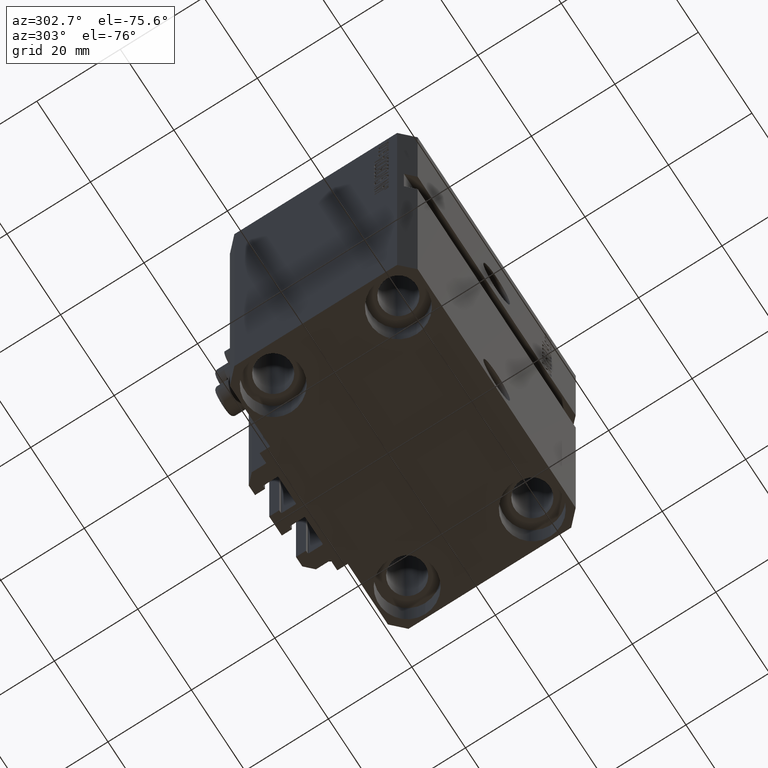
[diagram: clean part render]
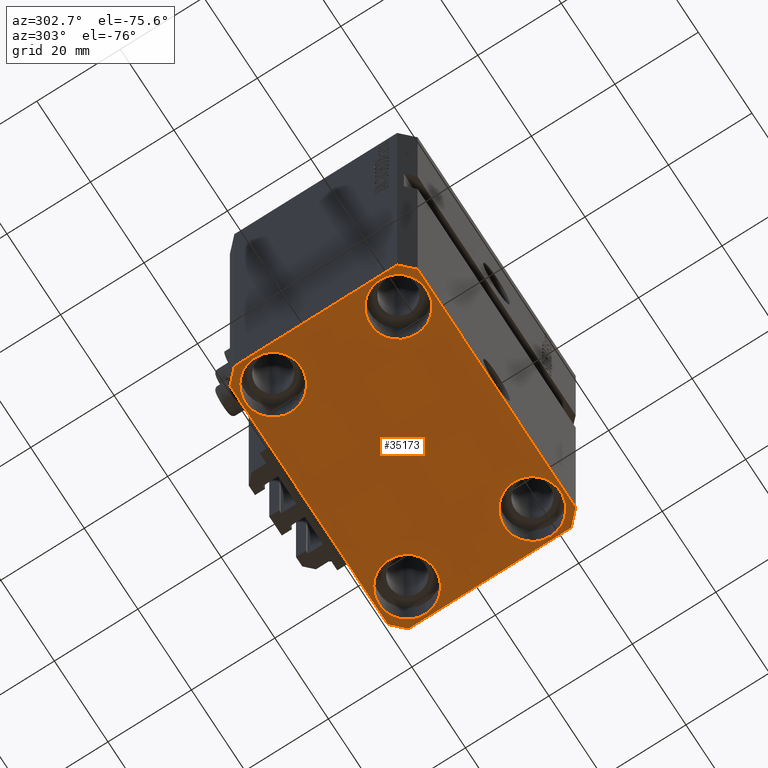
[diagram: same view with one face highlighted and labeled with its STEP entity id]
A machine part, auxiliary view. The second image highlights one B-rep face of the part: STEP entity #35173.
In plain terms, the highlighted planar face has unit normal (0, 0, 1).
Its self-contained STEP definition (entity closure, byte-faithful):
#14 = DIRECTION ( 'NONE',  ( -0.000000000000000000, -0.000000000000000000, 1.000000000000000000 ) ) ;
#82 = LINE ( 'NONE', #46398, #16047 ) ;
#499 = ORIENTED_EDGE ( 'NONE', *, *, #8552, .T. ) ;
#868 = DIRECTION ( 'NONE',  ( -0.000000000000000000, -0.000000000000000000, 1.000000000000000000 ) ) ;
#1665 = AXIS2_PLACEMENT_3D ( 'NONE', #12085, #41429, #34275 ) ;
#1680 = AXIS2_PLACEMENT_3D ( 'NONE', #3821, #4299, #21999 ) ;
#1861 = DIRECTION ( 'NONE',  ( 1.000000000000000000, 0.000000000000000000, 0.000000000000000000 ) ) ;
#2579 = LINE ( 'NONE', #38140, #34262 ) ;
#2635 = CIRCLE ( 'NONE', #5714, 6.750000000041541881 ) ;
#2769 = FACE_BOUND ( 'NONE', #32985, .T. ) ;
#3035 = AXIS2_PLACEMENT_3D ( 'NONE', #36067, #14, #47031 ) ;
#3114 = AXIS2_PLACEMENT_3D ( 'NONE', #27175, #15488, #1861 ) ;
#3326 = EDGE_CURVE ( 'NONE', #25304, #16161, #42530, .T. ) ;
#3500 = LINE ( 'NONE', #36905, #21987 ) ;
#3594 = DIRECTION ( 'NONE',  ( -0.000000000000000000, -0.000000000000000000, 1.000000000000000000 ) ) ;
#3821 = CARTESIAN_POINT ( 'NONE',  ( -25.00000000000000355, 15.00000000000000000, -107.0000000000000000 ) ) ;
#3880 = AXIS2_PLACEMENT_3D ( 'NONE', #6731, #25367, #7205 ) ;
#4054 = CARTESIAN_POINT ( 'NONE',  ( -29.49999999999650413, -22.49999999999949907, -107.0000000000000000 ) ) ;
#4299 = DIRECTION ( 'NONE',  ( -0.000000000000000000, -0.000000000000000000, 1.000000000000000000 ) ) ;
#4706 = EDGE_CURVE ( 'NONE', #40825, #25304, #44118, .T. ) ;
#4755 = VERTEX_POINT ( 'NONE', #26251 ) ;
#4866 = VERTEX_POINT ( 'NONE', #20740 ) ;
#5577 = EDGE_CURVE ( 'NONE', #16161, #37039, #2579, .T. ) ;
#5624 = VERTEX_POINT ( 'NONE', #6393 ) ;
#5714 = AXIS2_PLACEMENT_3D ( 'NONE', #27627, #45981, #37862 ) ;
#5994 = VECTOR ( 'NONE', #30026, 1000.000000000000114 ) ;
#6393 = CARTESIAN_POINT ( 'NONE',  ( -18.24999999997747224, 15.00000000000000000, -107.0000000000000000 ) ) ;
#6731 = CARTESIAN_POINT ( 'NONE',  ( 25.00000000000000355, -15.00000000000000000, -107.0000000000000000 ) ) ;
#6879 = VERTEX_POINT ( 'NONE', #13973 ) ;
#7205 = DIRECTION ( 'NONE',  ( 1.000000000000000000, 0.000000000000000000, 0.000000000000000000 ) ) ;
#7752 = CIRCLE ( 'NONE', #1665, 6.750000000022533087 ) ;
#7894 = DIRECTION ( 'NONE',  ( 1.000000000000000000, 0.000000000000000000, 0.000000000000000000 ) ) ;
#8267 = CARTESIAN_POINT ( 'NONE',  ( 29.49999999999650413, -22.49999999999949196, -107.0000000000000000 ) ) ;
#8552 = EDGE_CURVE ( 'NONE', #38506, #4755, #11500, .T. ) ;
#8662 = LINE ( 'NONE', #44448, #37923 ) ;
#9748 = EDGE_CURVE ( 'NONE', #40314, #5624, #7752, .T. ) ;
#9850 = CARTESIAN_POINT ( 'NONE',  ( 32.49999999999651124, -19.49999999999949196, -107.0000000000000000 ) ) ;
#9940 = DIRECTION ( 'NONE',  ( 1.000000000000000000, 0.000000000000000000, -0.000000000000000000 ) ) ;
#10940 = CARTESIAN_POINT ( 'NONE',  ( -29.49999999999650413, -22.49999999999949907, -107.0000000000000000 ) ) ;
#11500 = CIRCLE ( 'NONE', #3114, 6.749999999958452790 ) ;
#11671 = AXIS2_PLACEMENT_3D ( 'NONE', #33185, #3594, #7894 ) ;
#11912 = DIRECTION ( 'NONE',  ( 0.7071067811865483499, 0.7071067811865466846, 0.000000000000000000 ) ) ;
#12085 = CARTESIAN_POINT ( 'NONE',  ( -25.00000000000000355, 15.00000000000000000, -107.0000000000000000 ) ) ;
#12575 = ORIENTED_EDGE ( 'NONE', *, *, #9748, .T. ) ;
#13808 = CIRCLE ( 'NONE', #36657, 6.749999999977465137 ) ;
#13973 = CARTESIAN_POINT ( 'NONE',  ( -31.75000000004154899, -15.00000000000000000, -107.0000000000000000 ) ) ;
#14650 = DIRECTION ( 'NONE',  ( 0.000000000000000000, -1.000000000000000000, 0.000000000000000000 ) ) ;
#15279 = VERTEX_POINT ( 'NONE', #17494 ) ;
#15451 = ORIENTED_EDGE ( 'NONE', *, *, #40486, .T. ) ;
#15474 = CARTESIAN_POINT ( 'NONE',  ( -29.49999999999650413, 22.49999999999949907, -107.0000000000000000 ) ) ;
#15488 = DIRECTION ( 'NONE',  ( -0.000000000000000000, -0.000000000000000000, 1.000000000000000000 ) ) ;
#15682 = DIRECTION ( 'NONE',  ( 1.000000000000000000, 0.000000000000000000, 0.000000000000000000 ) ) ;
#16047 = VECTOR ( 'NONE', #14650, 1000.000000000000000 ) ;
#16161 = VERTEX_POINT ( 'NONE', #24966 ) ;
#16203 = CARTESIAN_POINT ( 'NONE',  ( -32.49999999999650413, -19.49999999999949907, -107.0000000000000000 ) ) ;
#16403 = ORIENTED_EDGE ( 'NONE', *, *, #45782, .T. ) ;
#16753 = ORIENTED_EDGE ( 'NONE', *, *, #24308, .F. ) ;
#17079 = CARTESIAN_POINT ( 'NONE',  ( 32.49999999999651124, -19.49999999999949196, -107.0000000000000000 ) ) ;
#17288 = EDGE_CURVE ( 'NONE', #4755, #38506, #46717, .T. ) ;
#17341 = DIRECTION ( 'NONE',  ( 0.000000000000000000, 0.000000000000000000, 1.000000000000000000 ) ) ;
#17362 = CARTESIAN_POINT ( 'NONE',  ( 18.25000000002253842, -15.00000000000000000, -107.0000000000000000 ) ) ;
#17494 = CARTESIAN_POINT ( 'NONE',  ( -18.24999999995845812, -15.00000000000000000, -107.0000000000000000 ) ) ;
#17503 = VECTOR ( 'NONE', #11912, 1000.000000000000000 ) ;
#20048 = ORIENTED_EDGE ( 'NONE', *, *, #5577, .F. ) ;
#20740 = CARTESIAN_POINT ( 'NONE',  ( -29.49999999999650413, 22.49999999999949907, -107.0000000000000000 ) ) ;
#20842 = CARTESIAN_POINT ( 'NONE',  ( 29.49999999999707967, 22.49999999999951328, -107.0000000000000000 ) ) ;
#20975 = DIRECTION ( 'NONE',  ( -0.7071067811865352493, 0.7071067811865597852, 0.000000000000000000 ) ) ;
#21140 = ORIENTED_EDGE ( 'NONE', *, *, #30895, .F. ) ;
#21590 = EDGE_CURVE ( 'NONE', #15279, #6879, #2635, .T. ) ;
#21773 = EDGE_LOOP ( 'NONE', ( #41432, #20048, #24918, #45144, #16753, #24123, #25323, #21140 ) ) ;
#21987 = VECTOR ( 'NONE', #28819, 1000.000000000000000 ) ;
#21999 = DIRECTION ( 'NONE',  ( 1.000000000000000000, 0.000000000000000000, 0.000000000000000000 ) ) ;
#22240 = CIRCLE ( 'NONE', #1680, 6.750000000022533087 ) ;
#22621 = CARTESIAN_POINT ( 'NONE',  ( 31.74999999997746869, -15.00000000000000000, -107.0000000000000000 ) ) ;
#22785 = CARTESIAN_POINT ( 'NONE',  ( -31.75000000002253842, 15.00000000000000000, -107.0000000000000000 ) ) ;
#24123 = ORIENTED_EDGE ( 'NONE', *, *, #31456, .F. ) ;
#24308 = EDGE_CURVE ( 'NONE', #34017, #40825, #25039, .T. ) ;
#24841 = VECTOR ( 'NONE', #32649, 1000.000000000000000 ) ;
#24918 = ORIENTED_EDGE ( 'NONE', *, *, #3326, .F. ) ;
#24966 = CARTESIAN_POINT ( 'NONE',  ( 32.49999999999702993, 19.49999999999945999, -107.0000000000000000 ) ) ;
#24979 = FACE_BOUND ( 'NONE', #37007, .T. ) ;
#25039 = LINE ( 'NONE', #10940, #24841 ) ;
#25304 = VERTEX_POINT ( 'NONE', #17079 ) ;
#25323 = ORIENTED_EDGE ( 'NONE', *, *, #38170, .F. ) ;
#25367 = DIRECTION ( 'NONE',  ( -0.000000000000000000, -0.000000000000000000, 1.000000000000000000 ) ) ;
#25974 = VERTEX_POINT ( 'NONE', #17362 ) ;
#26251 = CARTESIAN_POINT ( 'NONE',  ( 31.74999999995845101, 15.00000000000000888, -107.0000000000000000 ) ) ;
#26578 = VECTOR ( 'NONE', #36541, 1000.000000000000000 ) ;
#27175 = CARTESIAN_POINT ( 'NONE',  ( 24.99999999999999645, 15.00000000000000888, -107.0000000000000000 ) ) ;
#27627 = CARTESIAN_POINT ( 'NONE',  ( -25.00000000000000355, -15.00000000000000000, -107.0000000000000000 ) ) ;
#28298 = CIRCLE ( 'NONE', #3880, 6.749999999977465137 ) ;
#28785 = CARTESIAN_POINT ( 'NONE',  ( 0.000000000000000000, 0.000000000000000000, -107.0000000000000000 ) ) ;
#28819 = DIRECTION ( 'NONE',  ( -1.000000000000000000, -2.352167425053553784E-16, 0.000000000000000000 ) ) ;
#29495 = EDGE_CURVE ( 'NONE', #37039, #4866, #3500, .T. ) ;
#30026 = DIRECTION ( 'NONE',  ( -0.7071067811865474617, -0.7071067811865474617, 0.000000000000000000 ) ) ;
#30705 = CARTESIAN_POINT ( 'NONE',  ( 25.00000000000000355, -15.00000000000000000, -107.0000000000000000 ) ) ;
#30895 = EDGE_CURVE ( 'NONE', #4866, #36227, #33838, .T. ) ;
#31456 = EDGE_CURVE ( 'NONE', #39686, #34017, #8662, .T. ) ;
#32649 = DIRECTION ( 'NONE',  ( 1.000000000000000000, 1.176083712526788232E-16, 0.000000000000000000 ) ) ;
#32985 = EDGE_LOOP ( 'NONE', ( #499, #40741 ) ) ;
#33185 = CARTESIAN_POINT ( 'NONE',  ( 24.99999999999999645, 15.00000000000000888, -107.0000000000000000 ) ) ;
#33838 = LINE ( 'NONE', #15474, #5994 ) ;
#33954 = DIRECTION ( 'NONE',  ( 0.7071067811865474617, -0.7071067811865474617, 0.000000000000000000 ) ) ;
#34017 = VERTEX_POINT ( 'NONE', #4054 ) ;
#34262 = VECTOR ( 'NONE', #20975, 1000.000000000000000 ) ;
#34275 = DIRECTION ( 'NONE',  ( 1.000000000000000000, 0.000000000000000000, 0.000000000000000000 ) ) ;
#34578 = CARTESIAN_POINT ( 'NONE',  ( 18.25000000004154543, 15.00000000000000888, -107.0000000000000000 ) ) ;
#34671 = CARTESIAN_POINT ( 'NONE',  ( -32.49999999999650413, 19.49999999999949907, -107.0000000000000000 ) ) ;
#34683 = ORIENTED_EDGE ( 'NONE', *, *, #37175, .T. ) ;
#35173 = ADVANCED_FACE ( 'NONE', ( #46212, #24979, #2769, #39513, #42391 ), #47140, .F. ) ;
#36067 = CARTESIAN_POINT ( 'NONE',  ( -25.00000000000000355, -15.00000000000000000, -107.0000000000000000 ) ) ;
#36227 = VERTEX_POINT ( 'NONE', #34671 ) ;
#36541 = DIRECTION ( 'NONE',  ( 1.334402673828349134E-14, 1.000000000000000000, 0.000000000000000000 ) ) ;
#36657 = AXIS2_PLACEMENT_3D ( 'NONE', #30705, #868, #15682 ) ;
#36905 = CARTESIAN_POINT ( 'NONE',  ( 29.49999999999707967, 22.49999999999951328, -107.0000000000000000 ) ) ;
#37007 = EDGE_LOOP ( 'NONE', ( #15451, #44791 ) ) ;
#37039 = VERTEX_POINT ( 'NONE', #20842 ) ;
#37061 = ORIENTED_EDGE ( 'NONE', *, *, #21590, .T. ) ;
#37175 = EDGE_CURVE ( 'NONE', #6879, #15279, #41917, .T. ) ;
#37785 = EDGE_LOOP ( 'NONE', ( #34683, #37061 ) ) ;
#37862 = DIRECTION ( 'NONE',  ( 1.000000000000000000, 0.000000000000000000, 0.000000000000000000 ) ) ;
#37923 = VECTOR ( 'NONE', #33954, 1000.000000000000114 ) ;
#38140 = CARTESIAN_POINT ( 'NONE',  ( 32.49999999999702993, 19.49999999999945999, -107.0000000000000000 ) ) ;
#38170 = EDGE_CURVE ( 'NONE', #36227, #39686, #82, .T. ) ;
#38506 = VERTEX_POINT ( 'NONE', #34578 ) ;
#39513 = FACE_BOUND ( 'NONE', #43646, .T. ) ;
#39686 = VERTEX_POINT ( 'NONE', #16203 ) ;
#40314 = VERTEX_POINT ( 'NONE', #22785 ) ;
#40486 = EDGE_CURVE ( 'NONE', #25974, #40880, #28298, .T. ) ;
#40741 = ORIENTED_EDGE ( 'NONE', *, *, #17288, .T. ) ;
#40811 = EDGE_CURVE ( 'NONE', #40880, #25974, #13808, .T. ) ;
#40825 = VERTEX_POINT ( 'NONE', #8267 ) ;
#40880 = VERTEX_POINT ( 'NONE', #22621 ) ;
#41429 = DIRECTION ( 'NONE',  ( -0.000000000000000000, -0.000000000000000000, 1.000000000000000000 ) ) ;
#41432 = ORIENTED_EDGE ( 'NONE', *, *, #29495, .F. ) ;
#41853 = AXIS2_PLACEMENT_3D ( 'NONE', #28785, #17341, #9940 ) ;
#41917 = CIRCLE ( 'NONE', #3035, 6.750000000041541881 ) ;
#42391 = FACE_OUTER_BOUND ( 'NONE', #21773, .T. ) ;
#42530 = LINE ( 'NONE', #9850, #26578 ) ;
#43646 = EDGE_LOOP ( 'NONE', ( #12575, #16403 ) ) ;
#44118 = LINE ( 'NONE', #44357, #17503 ) ;
#44357 = CARTESIAN_POINT ( 'NONE',  ( 29.49999999999650413, -22.49999999999949196, -107.0000000000000000 ) ) ;
#44448 = CARTESIAN_POINT ( 'NONE',  ( -32.49999999999650413, -19.49999999999949907, -107.0000000000000000 ) ) ;
#44791 = ORIENTED_EDGE ( 'NONE', *, *, #40811, .T. ) ;
#45144 = ORIENTED_EDGE ( 'NONE', *, *, #4706, .F. ) ;
#45782 = EDGE_CURVE ( 'NONE', #5624, #40314, #22240, .T. ) ;
#45981 = DIRECTION ( 'NONE',  ( -0.000000000000000000, -0.000000000000000000, 1.000000000000000000 ) ) ;
#46212 = FACE_BOUND ( 'NONE', #37785, .T. ) ;
#46398 = CARTESIAN_POINT ( 'NONE',  ( -32.49999999999650413, 19.49999999999949907, -107.0000000000000000 ) ) ;
#46717 = CIRCLE ( 'NONE', #11671, 6.749999999958452790 ) ;
#47031 = DIRECTION ( 'NONE',  ( 1.000000000000000000, 0.000000000000000000, 0.000000000000000000 ) ) ;
#47140 = PLANE ( 'NONE',  #41853 ) ;